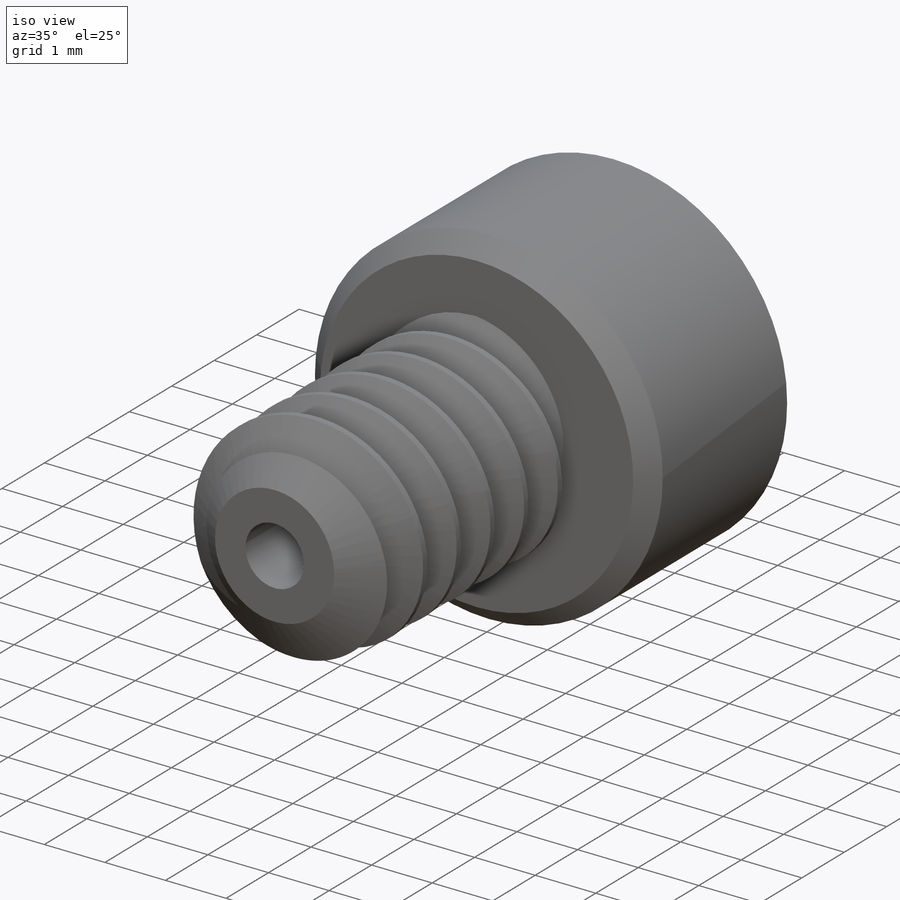
[diagram: iso view]
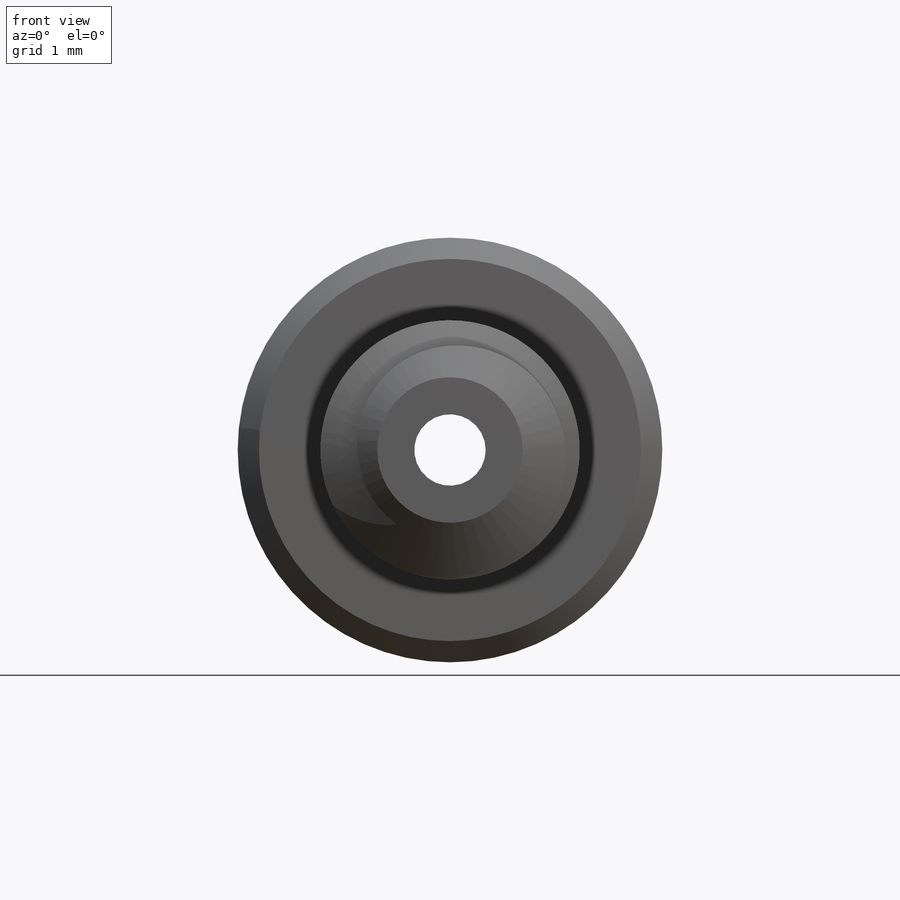
[diagram: front view]
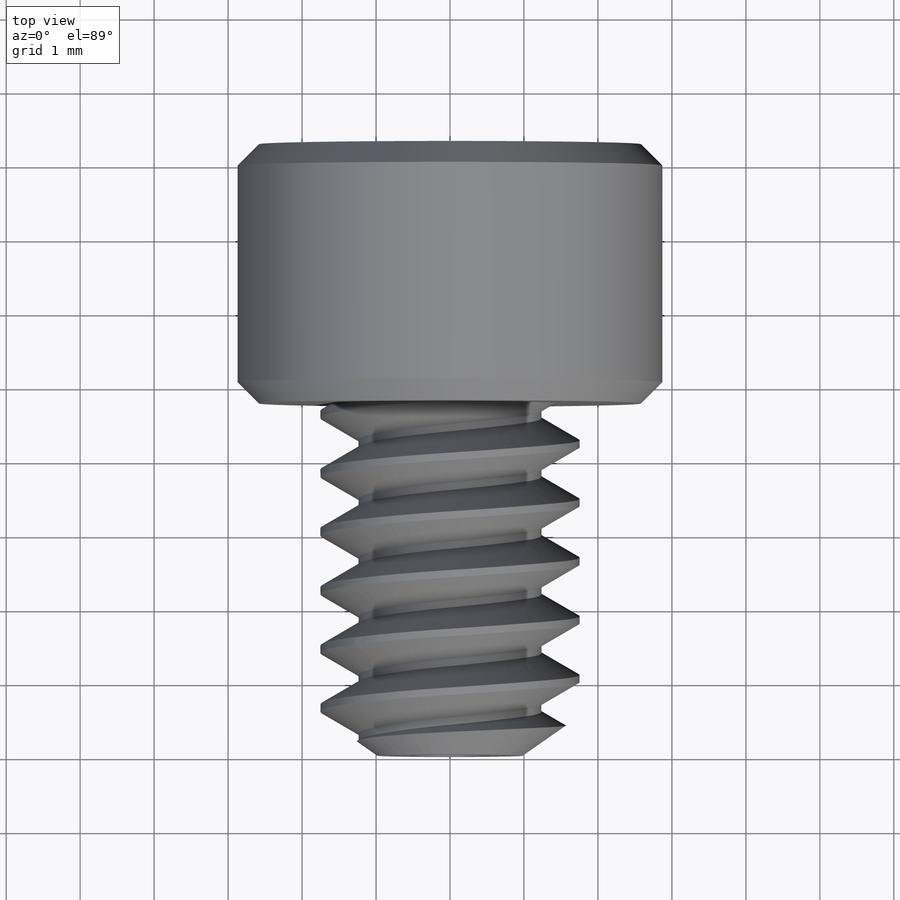
[diagram: top view]
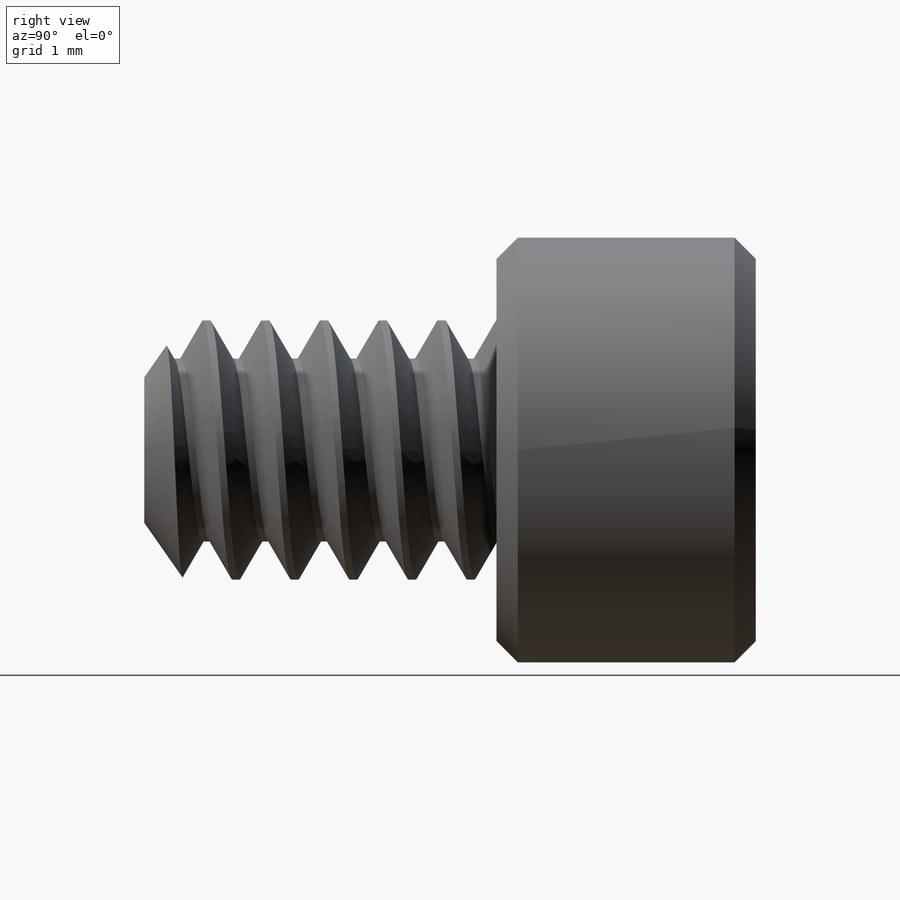
[diagram: right view]
SOLIDWORKS PART (.sldprt)
format: sldprt  version: not decoded by parser v0  size: 876,544 bytes
history: native  units: mm
features: sketch x10, extrude x3, cut_extrude x3, chamfer x2, material x1, helix x1, sweep x1, cut_revolve x1, plane x1, boolean_combine x1 (+14 scaffold rows collapsed)
feature tree (38):
  scaffold x14  (default folders/planes/origin — collapsed)
  material  "Material <not specified>"
  sketch  "Sketch1"  dims[OD=3.5052mm]
  extrude  "Extrude1"  Depth=4.7625mm screw length=4.7625mm
  sketch  "Sketch2"
  helix  "Helix/Spiral1"  Pitch=5.55625mm pitch=0.79375mm
  sketch  "Sketch3"  dims[c1.D1=~0.099219mm c1.D2=~0.396875mm c1.D3=~1.069256mm c2.D3=60.0deg]
  sweep  "Cut-Sweep1"
  sketch  "Sketch4"  dims[c1.D1=~3.187432mm c2.D1=55.0deg c2.D2=0.254mm]
  cut_revolve  "Cut-Revolve1"  Angle=360deg
  sketch  "Sketch6"  dims[head dia=5.7404mm]
  extrude  "Extrude2"  Depth=3.5052mm head depth=3.5052mm
  sketch  "Sketch7"  dims[hex dia=~2.778125mm]
  cut_extrude  "Cut-Extrude1"  Depth=2.083594mm
  sketch  "Sketch8"
  cut_extrude  "Cut-Extrude2"  [1 undecoded]
  chamfer  "Chamfer1"  Distance=0.28702mm Angle=45deg
  sketch  "Sketch10"  dims[D1=0.0mm]
  plane  "Plane1"  Offset=0mm Min Thread=0mm
  extrude  "partial thread"  [1 undecoded]
  chamfer  "Chamfer2"  Distance=0.070104mm Angle=45deg
  boolean_combine  "Combine1"
  sketch  "Sketch9"  dims[D1=~1.984375mm]
  sketch  "Sketch11"  dims[Vent Dia=0.9652mm]
  cut_extrude  "Cut-Extrude3"  [1 undecoded]
decode coverage: 15 of 22 modeling features carry decoded parameters
note: ~ marks probable driven/reference dimensions
note: 3 parameter values undecoded
summary: no parameter record found for 3 features
note: suppression state not decoded; provenance and decode notes live in map.json
